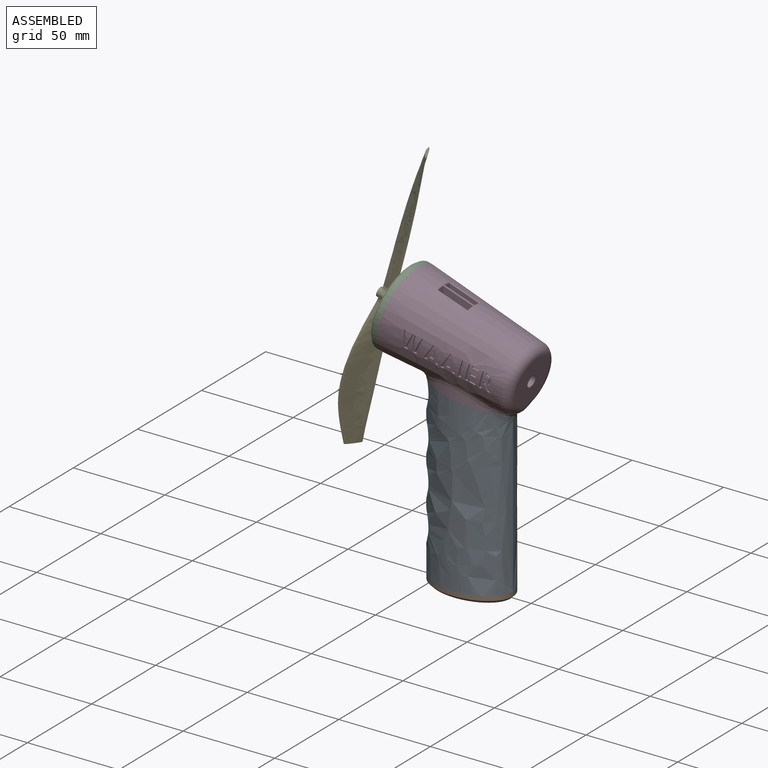
[diagram: assembled view]
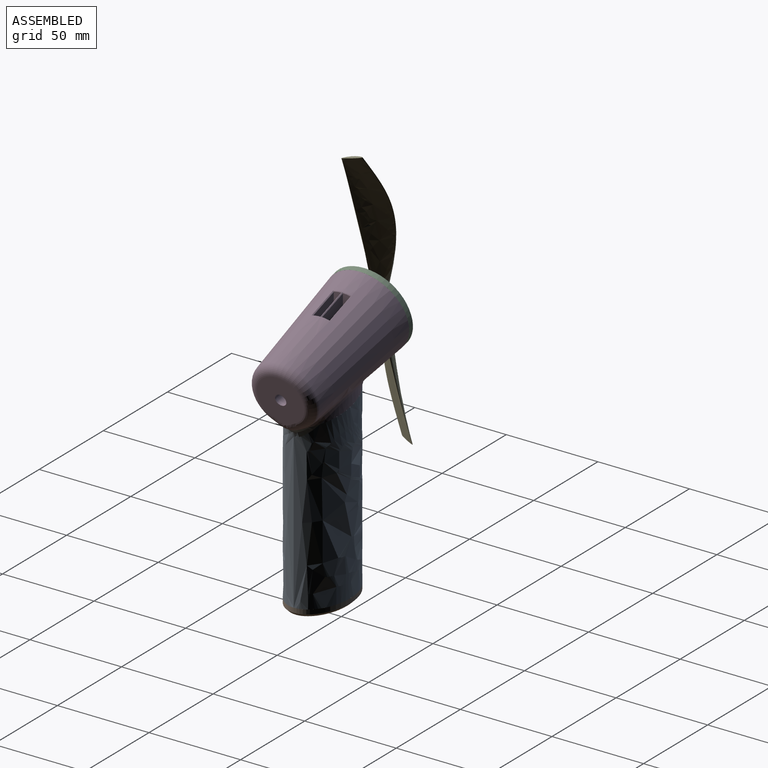
[diagram: assembled view, second angle]
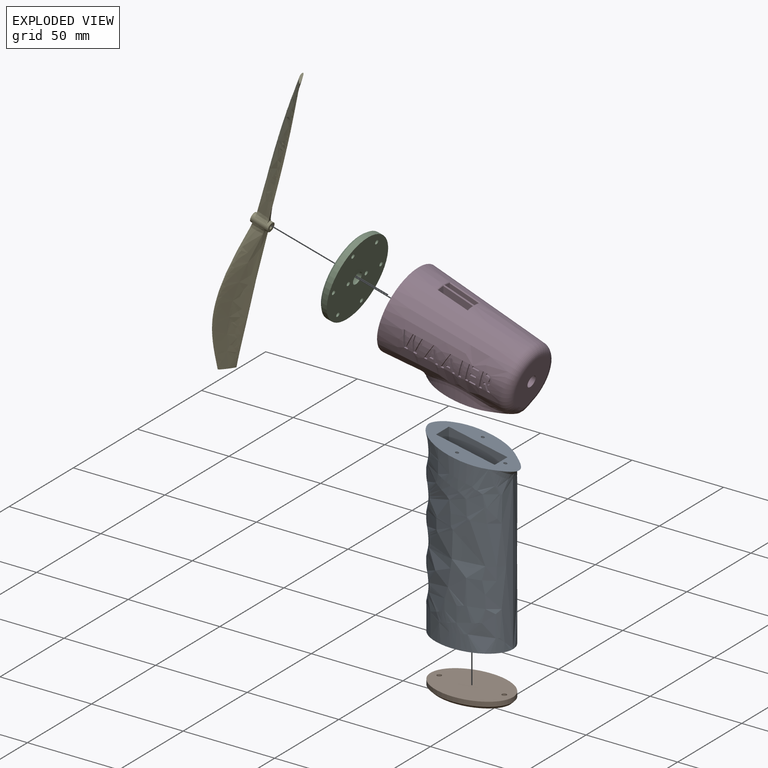
[diagram: exploded view]
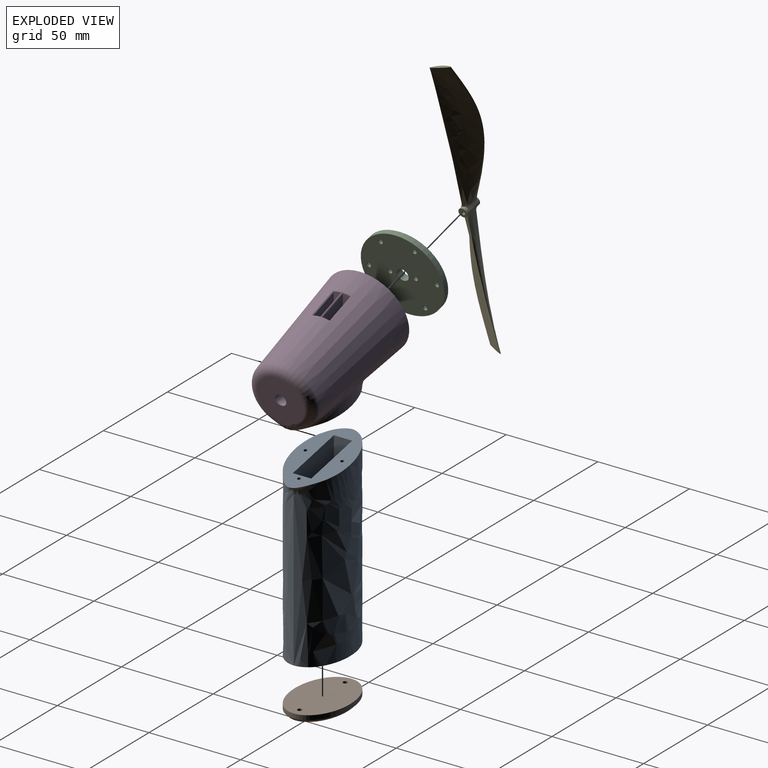
[diagram: exploded view, second angle]
ASSEMBLY  parts=5 mates=4
PART A: 31 faces, bbox 55x31.8x103.9 mm
  f0: cylinder r=9mm len=13.22mm, axis (0,1,0), area 153.1mm2, adj f4
  f1: cylinder r=9mm len=13.22mm, axis (0,1,0), area 153.1mm2, adj f5
  f2: cylinder r=9mm len=13.22mm, axis (0,1,0), area 153.1mm2, adj f6
  f3: cylinder r=9mm len=13.22mm, axis (0,1,0), area 153.1mm2, adj f7
  f4: bspline ~21.46x20.57mm, area 269.7mm2, adj f0,f14
  f5: bspline ~21.46x20.57mm, area 269.7mm2, adj f1,f14
  f6: bspline ~21.46x20.57mm, area 269.7mm2, adj f2,f14
  f7: bspline ~21.46x20.57mm, area 227.1mm2, adj f3,f9,f14
  f8: bspline ~5.68x5.18mm, area 1.2mm2, adj f9,f14,f20
  f9: bspline ~22.34x7.63mm, area 35.2mm2, adj f7,f8,f10,f20
  f10: bspline ~5.37x5.11mm, area 1.2mm2, adj f9,f14,f20
  f11: bspline ~13.13x11.63mm, area 28.7mm2, adj f12,f14,f20
  f12: bspline ~6.23x5.98mm, area 19.9mm2, adj f11,f13,f14,f20
  f13: bspline ~9.34x9.06mm, area 28.7mm2, adj f12,f14,f20
  f14: extruded ~97.7x45mm, area 9428.8mm2, adj f4,f5,f6,f7,f8,f10,f11,f12
  f15: plane 45x30mm, normal (0,0,-1), area 730.5mm2, adj f14,f16,f17,f18,f19,f27,f29
  f16: plane 97.56x32mm, normal (0,1,0), area 3018.4mm2, adj f15,f17,f19,f20
  f17: plane 91.08x10mm, normal (-1,0,0), area 910.8mm2, adj f15,f16,f18,f20
  f18: plane 97.56x32mm, normal (0,-1,0), area 3018.4mm2, adj f15,f17,f19,f20
  f19: plane 97.56x10mm, normal (1,0,0), area 975.6mm2, adj f15,f16,f18,f20
  f20: plane 51.01x31.77mm, normal (0.2,0,0.98), area 794.7mm2, adj f8,f9,f10,f11,f12,f13,f14,f16
  f21: cylinder r=0.9mm len=2.81mm, axis (-0.2,0,-0.98), area 14.1mm2, adj f20,f22
  f22: plane 1.8x1.76mm, normal (0.2,0,0.98), area 2.5mm2, adj f21
  f23: cylinder r=0.9mm len=2.81mm, axis (-0.2,0,-0.98), area 14.1mm2, adj f20,f24
  f24: plane 1.8x1.76mm, normal (0.2,0,0.98), area 2.5mm2, adj f23
  f25: cylinder r=0.9mm len=2.81mm, axis (-0.2,0,-0.98), area 14.1mm2, adj f20,f26
  f26: plane 1.8x1.76mm, normal (0.2,0,0.98), area 2.5mm2, adj f25
  f27: cylinder r=1.25mm len=7mm, axis (0,0,-1), area 55mm2, adj f15,f28
  f28: cone r=0mm half-angle=59deg, axis (0,0,-1), area 5.7mm2, adj f27
  f29: cylinder r=1.25mm len=7mm, axis (0,0,-1), area 55mm2, adj f15,f30
  f30: cone r=0mm half-angle=59deg, axis (0,0,-1), area 5.7mm2, adj f29
PART B: 10 faces, bbox 45.3x30.3x4.3 mm
  f0: extruded ~45x30mm, area 297.5mm2, adj f2,f3
  f1: plane 42.32x27.32mm, normal (0,0,-1), area 847mm2, adj f3,f6,f9
  f2: plane 45x30mm, normal (0,0,1), area 1050.5mm2, adj f0,f4,f7
  f3: bspline ~45.01x30mm, area 242.4mm2, adj f0,f1
  f4: cylinder r=1.25mm len=2.5mm, axis (0,0,-1), area 7.9mm2, adj f2,f5
  f5: plane 5.6x5.6mm, normal (0,0,-1), area 19.7mm2, adj f4,f6
  f6: cylinder r=2.8mm len=5.6mm, axis (0,0,-1), area 52.8mm2, adj f1,f5
  f7: cylinder r=1.25mm len=2.5mm, axis (0,0,-1), area 7.9mm2, adj f2,f8
  f8: plane 5.6x5.6mm, normal (0,0,-1), area 19.7mm2, adj f7,f9
  f9: cylinder r=2.8mm len=5.6mm, axis (0,0,-1), area 52.8mm2, adj f1,f8
PART C: 29 faces, bbox 15.3x45x44.2 mm
  f0: cylinder r=22.5mm len=45mm, axis (0.97,0,-0.26), area 424.1mm2, adj f3,f28
  f1: cylinder r=3.25mm len=7.31mm, axis (0.97,0,-0.26), area 81.7mm2, adj f2,f3
  f2: plane 43x41.54mm, normal (-0.97,0,0.26), area 1222mm2, adj f1,f6,f9,f12,f15,f18,f21,f24
  f3: plane 45x43.47mm, normal (0.97,0,-0.26), area 1518mm2, adj f0,f1,f4,f7,f10,f13,f16,f19
  f4: cylinder r=1.25mm len=2.67mm, axis (-0.97,0,0.26), area 7.9mm2, adj f3,f5
  f5: plane 5.6x5.41mm, normal (-0.97,0,0.26), area 19.7mm2, adj f4,f6
  f6: cylinder r=2.8mm len=6.19mm, axis (-0.97,0,0.26), area 52.8mm2, adj f2,f5
  f7: cylinder r=1.25mm len=2.67mm, axis (-0.97,0,0.26), area 7.9mm2, adj f3,f8
  f8: plane 5.6x5.41mm, normal (-0.97,0,0.26), area 19.7mm2, adj f7,f9
  f9: cylinder r=2.8mm len=6.19mm, axis (-0.97,0,0.26), area 52.8mm2, adj f2,f8
  f10: cylinder r=1.25mm len=2.67mm, axis (-0.97,0,0.26), area 7.9mm2, adj f3,f11
  f11: plane 5.6x5.41mm, normal (-0.97,0,0.26), area 19.7mm2, adj f10,f12
  f12: cylinder r=2.8mm len=6.19mm, axis (-0.97,0,0.26), area 52.8mm2, adj f2,f11
  f13: cylinder r=1.25mm len=2.67mm, axis (-0.97,0,0.26), area 7.9mm2, adj f3,f14
  f14: plane 5.6x5.41mm, normal (-0.97,0,0.26), area 19.7mm2, adj f13,f15
  f15: cylinder r=2.8mm len=6.19mm, axis (-0.97,0,0.26), area 52.8mm2, adj f2,f14
  f16: cylinder r=1.25mm len=2.67mm, axis (-0.97,0,0.26), area 7.9mm2, adj f3,f17
  f17: plane 5.6x5.41mm, normal (-0.97,0,0.26), area 19.7mm2, adj f16,f18
  f18: cylinder r=2.8mm len=6.19mm, axis (-0.97,0,0.26), area 52.8mm2, adj f2,f17
  f19: cylinder r=1.25mm len=2.67mm, axis (-0.97,0,0.26), area 7.9mm2, adj f3,f20
  f20: plane 5.6x5.41mm, normal (-0.97,0,0.26), area 19.7mm2, adj f19,f21
  f21: cylinder r=2.8mm len=6.19mm, axis (-0.97,0,0.26), area 52.8mm2, adj f2,f20
  f22: cylinder r=1.25mm len=2.67mm, axis (-0.97,0,0.26), area 7.9mm2, adj f3,f23
  f23: plane 5.6x5.41mm, normal (-0.97,0,0.26), area 19.7mm2, adj f22,f24
  f24: cylinder r=2.8mm len=6.19mm, axis (-0.97,0,0.26), area 52.8mm2, adj f2,f23
  f25: cylinder r=1.25mm len=2.67mm, axis (-0.97,0,0.26), area 7.9mm2, adj f3,f26
  f26: plane 5.6x5.41mm, normal (-0.97,0,0.26), area 19.7mm2, adj f25,f27
  f27: cylinder r=2.8mm len=6.19mm, axis (-0.97,0,0.26), area 52.8mm2, adj f2,f26
  f28: cone r=21.5mm half-angle=45deg, axis (0.97,0,-0.26), area 195.5mm2, adj f0,f2
PART D: 161 faces, bbox 85.6x53.5x70.2 mm
  f0: plane 30x28.98mm, normal (-0.97,0,0.26), area 673.9mm2, adj f1,f3,f4,f5,f6,f160
  f1: plane 2.5x2.42mm, normal (0.26,0,0.97), area 6.2mm2, adj f0,f2,f3,f5
  f2: plane 2.5x1.45mm, normal (-0.97,0,0.26), area 3.8mm2, adj f1,f3,f4,f5
  f3: plane 2.8x2.1mm, normal (0,1,0), area 3.8mm2, adj f0,f1,f2,f4
  f4: plane 2.5x2.42mm, normal (-0.26,0,-0.97), area 6.3mm2, adj f0,f2,f3,f5
  f5: plane 2.8x2.1mm, normal (0,-1,0), area 3.8mm2, adj f0,f1,f2,f4
  f6: cylinder r=15mm len=70.55mm, axis (-0.97,0,0.26), area 5653.5mm2, adj f0,f7,f136,f137,f138,f139,f140,f141
  f7: plane 7.17x4.42mm, normal (1,0,0), area 25.9mm2, adj f6,f8,f134,f135,f136,f138
  f8: bspline ~16.94x6.23mm, area 11mm2, adj f7,f9,f10,f134,f136
  f9: bspline ~5.39x1.11mm, area 2.9mm2, adj f8,f10,f135,f136,f137,f138
  f10: cone r=17.5mm half-angle=4.1deg, axis (-0.97,0,0.26), area 6476.5mm2, adj f8,f9,f11,f13,f14,f15,f16,f18
  f11: plane 2.19x1.16mm, normal (0.26,0,0.97), area 2.3mm2, adj f10,f12,f13,f15
  f12: cone r=17.5mm half-angle=4.1deg, axis (-0.97,0,0.26), area 1.9mm2, adj f11,f13,f14,f15
  f13: plane 1.13x1.02mm, normal (-1,0,-0.08), area 1mm2, adj f10,f11,f12,f14
  f14: plane 1.54x1.11mm, normal (-0.26,0,-0.97), area 1.6mm2, adj f10,f12,f13,f15
  f15: plane 1.08x0.85mm, normal (0.83,0,-0.56), area 1mm2, adj f10,f11,f12,f14
  f16: plane 8.46x2.27mm, normal (0.97,0,-0.26), area 8.8mm2, adj f10,f17,f18,f20
  f17: cone r=17.5mm half-angle=4.1deg, axis (-0.97,0,0.26), area 12.8mm2, adj f16,f18,f19,f20
  f18: plane 1.4x1.11mm, normal (0.26,0,0.97), area 1.4mm2, adj f10,f16,f17,f19
  f19: plane 8.46x2.27mm, normal (-0.97,0,0.26), area 8.8mm2, adj f10,f17,f18,f20
  f20: plane 1.4x1.11mm, normal (-0.26,0,-0.97), area 1.4mm2, adj f10,f16,f17,f19
  f21: plane 1.01x0.94mm, normal (0.97,0,-0.26), area 1mm2, adj f10,f22,f23,f25
  f22: cone r=17.5mm half-angle=4.1deg, axis (-0.97,0,0.26), area 3.1mm2, adj f21,f23,f24,f25
  f23: plane 3.06x1.23mm, normal (0.26,0,0.97), area 3.2mm2, adj f10,f21,f22,f24
  f24: plane 1.01x0.94mm, normal (-0.97,0,0.26), area 1mm2, adj f10,f22,f23,f25
  f25: plane 3.06x1.23mm, normal (-0.26,0,-0.97), area 3.2mm2, adj f10,f21,f22,f24
  f26: plane 8.46x2.27mm, normal (-0.97,0,0.26), area 8.8mm2, adj f10,f27,f28,f30
  f27: cone r=17.5mm half-angle=4.1deg, axis (-0.97,0,0.26), area 12.8mm2, adj f26,f28,f29,f30
  f28: plane 1.4x1.11mm, normal (-0.26,0,-0.97), area 1.4mm2, adj f10,f26,f27,f29
  f29: plane 8.46x2.27mm, normal (0.97,0,-0.26), area 8.8mm2, adj f10,f27,f28,f30
  f30: plane 1.4x1.11mm, normal (0.26,0,0.97), area 1.4mm2, adj f10,f26,f27,f29
  f31: plane 9.27x1.62mm, normal (-1,0,-0.07), area 9.3mm2, adj f10,f32,f33,f38
  f32: cone r=17.5mm half-angle=4.1deg, axis (-0.97,0,0.26), area 24.4mm2, adj f31,f33,f34,f35,f36,f37,f38
  f33: plane 1.37x1.1mm, normal (-0.26,0,-0.97), area 1.4mm2, adj f10,f31,f32,f34
  f34: plane 7.68x5.25mm, normal (0.83,0,-0.56), area 9.3mm2, adj f10,f32,f33,f35
  f35: plane 1.44x1.11mm, normal (0.26,0,0.97), area 1.5mm2, adj f10,f32,f34,f36
  f36: plane 5.76x3.93mm, normal (-0.83,0,0.56), area 7mm2, adj f10,f32,f35,f37
  f37: plane 6.95x1.61mm, normal (1,0,0.07), area 6.9mm2, adj f10,f32,f36,f38
  f38: plane 1.42x1.11mm, normal (0.26,0,0.97), area 1.5mm2, adj f10,f31,f32,f37
  f39: plane 3.28x1.43mm, normal (0.97,0,-0.26), area 3.4mm2, adj f10,f40,f41,f47
  f40: cone r=17.5mm half-angle=4.1deg, axis (-0.97,0,0.26), area 22.1mm2, adj f39,f41,f42,f43,f44,f45,f46,f47
  f41: plane 5.54x1.55mm, normal (1,0,-0.05), area 5.5mm2, adj f10,f39,f40,f42
  f42: plane 1.79x1.14mm, normal (0.26,0,0.97), area 1.9mm2, adj f10,f40,f41,f43
  f43: plane 7.92x4.58mm, normal (-0.87,0,0.5), area 9.1mm2, adj f10,f40,f42,f44
  f44: plane 1.56x1.12mm, normal (-0.26,0,-0.97), area 1.6mm2, adj f10,f40,f43,f45
  f45: plane 6.88x3.59mm, normal (0.89,0,-0.46), area 7.7mm2, adj f10,f40,f44,f46
  f46: plane 7.71x1.41mm, normal (-1,0,0.06), area 7.7mm2, adj f10,f40,f45,f47
  f47: plane 1.04x0.55mm, normal (-0.26,0,-0.97), area 0.6mm2, adj f10,f39,f40,f46
  f48: plane 2.19x1.16mm, normal (0.26,0,0.97), area 2.3mm2, adj f10,f49,f50,f52
  f49: cone r=17.5mm half-angle=4.1deg, axis (-0.97,0,0.26), area 1.9mm2, adj f48,f50,f51,f52
  f50: plane 1.12x1.02mm, normal (-1,0,-0.08), area 1mm2, adj f10,f48,f49,f51
  f51: plane 1.54x1.11mm, normal (-0.26,0,-0.97), area 1.6mm2, adj f10,f49,f50,f52
  f52: plane 1.07x0.85mm, normal (0.83,0,-0.56), area 1mm2, adj f10,f48,f49,f51
  f53: plane 9.27x1.64mm, normal (-1,0,-0.07), area 9.3mm2, adj f10,f54,f55,f60
  f54: cone r=17.5mm half-angle=4.1deg, axis (-0.97,0,0.26), area 24.4mm2, adj f53,f55,f56,f57,f58,f59,f60
  f55: plane 1.37x1.1mm, normal (-0.26,0,-0.97), area 1.4mm2, adj f10,f53,f54,f56
  f56: plane 7.69x5.25mm, normal (0.83,0,-0.56), area 9.3mm2, adj f10,f54,f55,f57
  f57: plane 1.44x1.11mm, normal (0.26,0,0.97), area 1.5mm2, adj f10,f54,f56,f58
  f58: plane 5.76x3.93mm, normal (-0.83,0,0.56), area 7mm2, adj f10,f54,f57,f59
  f59: plane 6.95x1.63mm, normal (1,0,0.07), area 6.9mm2, adj f10,f54,f58,f60
  f60: plane 1.42x1.11mm, normal (0.26,0,0.97), area 1.5mm2, adj f10,f53,f54,f59
  f61: plane 8.46x2.27mm, normal (-0.97,0,0.26), area 8.8mm2, adj f10,f62,f63,f65
  f62: cone r=17.5mm half-angle=4.1deg, axis (-0.97,0,0.26), area 12.7mm2, adj f61,f63,f64,f65
  f63: plane 1.38x1.11mm, normal (-0.26,0,-0.97), area 1.4mm2, adj f10,f61,f62,f64
  f64: plane 8.46x2.27mm, normal (0.97,0,-0.26), area 8.8mm2, adj f10,f62,f63,f65
  f65: plane 1.38x1.11mm, normal (0.26,0,0.97), area 1.4mm2, adj f10,f61,f62,f64
  f66: plane 3.87x1.67mm, normal (-0.97,0,-0.26), area 4mm2, adj f10,f67,f68,f91
  f67: cone r=17.5mm half-angle=4.1deg, axis (-0.97,0,0.26), area 15mm2, adj f66,f68,f69,f70,f71,f72,f73,f74
  f68: extruded ~1.4x1.06mm, area 1.6mm2, adj f10,f66,f67,f69
  f69: extruded ~1.45x1.11mm, area 1.7mm2, adj f10,f67,f68,f70
  f70: extruded ~1.17x1.12mm, area 1.2mm2, adj f10,f67,f69,f71
  f71: extruded ~1.1x1.01mm, area 1.1mm2, adj f10,f67,f70,f72
  f72: extruded ~1.05x0.81mm, area 1.1mm2, adj f10,f67,f71,f73
  f73: extruded ~1.04x1.02mm, area 1.1mm2, adj f10,f67,f72,f74
  f74: plane 1.04x0.59mm, normal (-0.26,0,-0.97), area 0.6mm2, adj f10,f67,f73,f75
  f75: plane 1.23x1.04mm, normal (0.97,0,-0.26), area 1.1mm2, adj f10,f67,f74,f76
  f76: plane 1.04x0.56mm, normal (0.26,0,0.97), area 0.6mm2, adj f10,f67,f75,f77
  f77: extruded ~1.03x0.81mm, area 0.9mm2, adj f10,f67,f76,f78
  f78: extruded ~1.03x0.55mm, area 0.7mm2, adj f10,f67,f77,f79
  f79: extruded ~1.05x0.58mm, area 0.6mm2, adj f10,f67,f78,f80
  f80: extruded ~1.05x0.49mm, area 0.5mm2, adj f10,f67,f79,f81
  f81: extruded ~1.07x0.83mm, area 0.9mm2, adj f10,f67,f80,f82
  f82: extruded ~1.04x0.48mm, area 0.7mm2, adj f10,f67,f81,f83
  f83: extruded ~1.04x0.53mm, area 0.6mm2, adj f10,f67,f82,f84
  f84: extruded ~1.04x0.53mm, area 0.5mm2, adj f10,f67,f83,f85
  f85: plane 1.06x0.78mm, normal (-0.26,0,-0.97), area 0.8mm2, adj f10,f67,f84,f86
  f86: plane 1.04x1.01mm, normal (0.97,0,-0.26), area 1mm2, adj f10,f67,f85,f87
  f87: plane 1.05x0.64mm, normal (0.26,0,0.97), area 0.7mm2, adj f10,f67,f86,f88
  f88: extruded ~1.01x0.12mm, area 0.1mm2, adj f10,f67,f87,f89
  f89: extruded ~1.01x0.08mm, area 0.1mm2, adj f10,f67,f88,f90
  f90: plane 3.51x1.63mm, normal (0.98,0,0.22), area 3.6mm2, adj f10,f67,f89,f91
  f91: plane 1.46x1.11mm, normal (0.26,0,0.97), area 1.5mm2, adj f10,f66,f67,f90
  f92: plane 3.42x1.26mm, normal (0.26,0,0.97), area 3.5mm2, adj f10,f93,f94,f96
  f93: cone r=17.5mm half-angle=4.1deg, axis (-0.97,0,0.26), area 3.9mm2, adj f92,f94,f95,f96
  f94: plane 1.23x1.04mm, normal (-0.97,0,0.26), area 1.1mm2, adj f10,f92,f93,f95
  f95: plane 3.42x1.26mm, normal (-0.26,0,-0.97), area 3.5mm2, adj f10,f93,f94,f96
  f96: plane 1.22x1.04mm, normal (0.97,0,-0.26), area 1.1mm2, adj f10,f92,f93,f95
  f97: plane 1.23x1.05mm, normal (-0.97,0,0.26), area 1.1mm2, adj f10,f98,f99,f101
  f98: cone r=17.5mm half-angle=4.1deg, axis (-0.97,0,0.26), area 3.9mm2, adj f97,f99,f100,f101
  f99: plane 3.42x1.26mm, normal (-0.26,0,-0.97), area 3.5mm2, adj f10,f97,f98,f100
  f100: plane 1.22x1.05mm, normal (0.97,0,-0.26), area 1.1mm2, adj f10,f98,f99,f101
  f101: plane 3.42x1.26mm, normal (0.26,0,0.97), area 3.5mm2, adj f10,f97,f98,f100
  f102: plane 9.1x1.56mm, normal (1,0,-0.01), area 9.1mm2, adj f10,f103,f104,f110
  f103: cone r=17.5mm half-angle=4.1deg, axis (-0.97,0,0.26), area 22.1mm2, adj f102,f104,f105,f106,f107,f108,f109,f110
  f104: plane 1.8x1.14mm, normal (0.26,0,0.97), area 1.9mm2, adj f10,f102,f103,f105
  f105: plane 5.12x2.72mm, normal (-0.88,0,0.47), area 5.8mm2, adj f10,f103,f104,f106
  f106: plane 3.06x1.42mm, normal (-0.97,0,0.26), area 3.2mm2, adj f10,f103,f105,f107
  f107: plane 1.04x0.54mm, normal (-0.26,0,-0.97), area 0.6mm2, adj f10,f103,f106,f108
  f108: plane 6.89x3.58mm, normal (0.89,0,-0.46), area 7.7mm2, adj f10,f103,f107,f109
  f109: plane 7.71x1.4mm, normal (-1,0,0.06), area 7.7mm2, adj f10,f103,f108,f110
  f110: plane 1.56x1.12mm, normal (-0.26,0,-0.97), area 1.6mm2, adj f10,f102,f103,f109
  f111: bspline ~16.94x6.2mm, area 9.9mm2, adj f10,f112,f114,f143,f146
  f112: bspline ~5.39x1.11mm, area 2.9mm2, adj f10,f111,f113,f143,f144,f145
  f113: bspline ~16.94x6.23mm, area 11mm2, adj f10,f112,f114,f145,f146
  f114: bspline ~4.9x0.99mm, area 2.2mm2, adj f10,f111,f113,f146
  f115: bspline ~22.34x7.63mm, area 76.7mm2, adj f10,f116,f131,f133
  f116: plane 57.77x38.53mm, normal (-0.2,0,-0.98), area 794.7mm2, adj f115,f117,f118,f119,f124,f125,f127,f129
  f117: extruded ~33.08x6.7mm, area 0mm2, adj f116,f131
  f118: extruded ~33.08x6.7mm, area 0mm2, adj f116,f133
  f119: bspline ~6.17x5.94mm, area 0.2mm2, adj f116,f120,f133
  f120: bspline ~4.09x3.53mm, area 12.8mm2, adj f119,f121,f122,f123,f124
  f121: bspline ~9.75x7.11mm, area 41.1mm2, adj f120,f122,f132,f133
  f122: plane 26.15x25.69mm, normal (0.97,0,-0.26), area 496.7mm2, adj f120,f121,f123,f132,f160
  f123: bspline ~9.05x6.77mm, area 41.1mm2, adj f120,f122,f131,f132
  f124: bspline ~6.23x5.98mm, area 0.2mm2, adj f116,f120,f131
  f125: cylinder r=0.9mm len=2.81mm, axis (-0.2,0,-0.98), area 14.1mm2, adj f116,f126
  f126: plane 1.8x1.76mm, normal (-0.2,0,-0.98), area 2.5mm2, adj f125
  f127: cylinder r=0.9mm len=2.81mm, axis (-0.2,0,-0.98), area 14.1mm2, adj f116,f128
  f128: plane 1.8x1.76mm, normal (-0.2,0,-0.98), area 2.5mm2, adj f127
  f129: cylinder r=0.9mm len=2.81mm, axis (-0.2,0,-0.98), area 14.1mm2, adj f116,f130
  f130: plane 1.8x1.76mm, normal (-0.2,0,-0.98), area 2.5mm2, adj f129
  f131: bspline ~49.68x19.05mm, area 207.8mm2, adj f10,f115,f116,f117,f123,f124
  f132: torus R=12.84mm, axis (-0.97,0,0.26), area 633.9mm2, adj f10,f121,f122,f123
  f133: bspline ~49.09x18.83mm, area 207.8mm2, adj f10,f115,f116,f118,f119,f121
  f134: bspline ~4.9x0.99mm, area 2.2mm2, adj f7,f8,f10,f135
  f135: bspline ~16.94x6.2mm, area 9.9mm2, adj f7,f9,f10,f134,f138
  f136: plane 16.03x10.64mm, normal (0,1,0), area 91.3mm2, adj f6,f7,f8,f9,f137
  f137: plane 5.64x4.07mm, normal (-1,0,0), area 19.7mm2, adj f6,f9,f136,f138
  f138: plane 16.14x10.54mm, normal (0,-1,0), area 90.1mm2, adj f6,f7,f9,f135,f137
  f139: plane 32x13.56mm, normal (0,-1,0), area 193.1mm2, adj f6,f116,f140,f142
  f140: plane 10.46x5.45mm, normal (-1,0,0), area 43.9mm2, adj f6,f116,f139,f141
  f141: plane 32x13.56mm, normal (0,1,0), area 193.1mm2, adj f6,f116,f140,f142
  f142: plane 10.46x7.54mm, normal (1,0,0), area 64.9mm2, adj f6,f116,f139,f141
  f143: plane 16.14x10.54mm, normal (0,1,0), area 90.1mm2, adj f6,f111,f112,f144,f146
  f144: plane 5.64x4.07mm, normal (-1,0,0), area 19.7mm2, adj f6,f112,f143,f145
  f145: plane 16.03x10.64mm, normal (0,-1,0), area 91.3mm2, adj f6,f112,f113,f144,f146
  f146: plane 7.17x4.42mm, normal (1,0,0), area 25.9mm2, adj f6,f111,f113,f114,f143,f145
  f147: plane 45x43.47mm, normal (-0.97,0,0.26), area 854.1mm2, adj f6,f10,f148,f150,f152,f154,f156,f158
  f148: cylinder r=1.25mm len=7.41mm, axis (-0.97,0,0.26), area 55mm2, adj f147,f149
  f149: cone r=0mm half-angle=59deg, axis (-0.97,0,0.26), area 5.7mm2, adj f148
  f150: cylinder r=1.25mm len=7.41mm, axis (-0.97,0,0.26), area 55mm2, adj f147,f151
  f151: cone r=0mm half-angle=59deg, axis (-0.97,0,0.26), area 5.7mm2, adj f150
  f152: cylinder r=1.25mm len=7.41mm, axis (-0.97,0,0.26), area 55mm2, adj f147,f153
  f153: cone r=0mm half-angle=59deg, axis (-0.97,0,0.26), area 5.7mm2, adj f152
  f154: cylinder r=1.25mm len=7.41mm, axis (-0.97,0,0.26), area 55mm2, adj f147,f155
  f155: cone r=0mm half-angle=59deg, axis (-0.97,0,0.26), area 5.7mm2, adj f154
  f156: cylinder r=1.25mm len=7.41mm, axis (-0.97,0,0.26), area 55mm2, adj f147,f157
  f157: cone r=0mm half-angle=59deg, axis (-0.97,0,0.26), area 5.7mm2, adj f156
  f158: cylinder r=1.25mm len=7.41mm, axis (-0.97,0,0.26), area 55mm2, adj f147,f159
  f159: cone r=0mm half-angle=59deg, axis (-0.97,0,0.26), area 5.7mm2, adj f158
  f160: cylinder r=3.05mm len=7.19mm, axis (0.97,0,-0.26), area 95.8mm2, adj f0,f122
PART E: 18 faces, bbox 160.1x35.7x15.7 mm
  f0: cylinder r=2.5mm len=10mm, axis (0,0,-1), area 85.5mm2, adj f1,f2,f3,f5,f8,f10,f13,f14
  f1: plane 5x5mm, normal (0,0,1), area 16.2mm2, adj f0,f17
  f2: plane 5x5mm, normal (0,0,-1), area 16.2mm2, adj f0,f17
  f3: bspline ~80x17.21mm, area 508.4mm2, adj f0,f4,f6,f7,f15,f16
  f4: bspline ~75.88x11.4mm, area 574.4mm2, adj f3,f5,f7,f15
  f5: bspline ~80x21.81mm, area 638.7mm2, adj f0,f4,f6,f7,f15,f16
  f6: bspline ~75.48x7.1mm, area 529.5mm2, adj f3,f5,f7,f16
  f7: plane 8.93x4.62mm, normal (1,0,0), area 11.1mm2, adj f3,f4,f5,f6
  f8: bspline ~80x17.21mm, area 510.8mm2, adj f0,f9,f11,f12,f13,f14
  f9: bspline ~75.88x11.4mm, area 574.4mm2, adj f8,f10,f12,f13
  f10: bspline ~80x21.81mm, area 641.5mm2, adj f0,f9,f11,f12,f13,f14
  f11: bspline ~75.48x7.1mm, area 529.5mm2, adj f8,f10,f12,f14
  f12: plane 8.93x4.62mm, normal (-1,0,0), area 11.1mm2, adj f8,f9,f10,f11
  f13: bspline ~8.94x3.51mm, area 21.9mm2, adj f0,f8,f9,f10
  f14: bspline ~9.03x3.22mm, area 22.5mm2, adj f0,f8,f10,f11
  f15: bspline ~9.22x3.5mm, area 21.9mm2, adj f0,f3,f4,f5
  f16: bspline ~10.44x3.21mm, area 22.5mm2, adj f0,f3,f5,f6
  f17: cylinder r=1.05mm len=10mm, axis (0,0,1), area 66mm2, adj f1,f2
PLACE A t=(-12.91,0.73,-31.74)mm fixed
PLACE B t=(-12.91,0.73,-31.74)mm
PLACE C t=(-12.91,0.73,-31.74)mm
PLACE D t=(-12.91,0.73,-31.74)mm
PLACE E rot(axis=(0.79,0,0.61),180deg) t=(-58.49,0.73,95.47)mm
MATE fastened A.f29 <-> B.f7  axis (0,0,-1) through (-30.66,0.73,-31.74)mm
MATE fastened C.f7 <-> D.f151  axis (0.97,0,-0.26) through (-47.86,-17.77,92.62)mm
MATE fastened D.f125 <-> A.f21  axis (-0.2,0,-0.98) through (-13.92,-9.27,62.79)mm
MATE revolute E.f0 <-> C.f0  axis (0.97,0,-0.26) through (-53.66,0.73,94.18)mm
